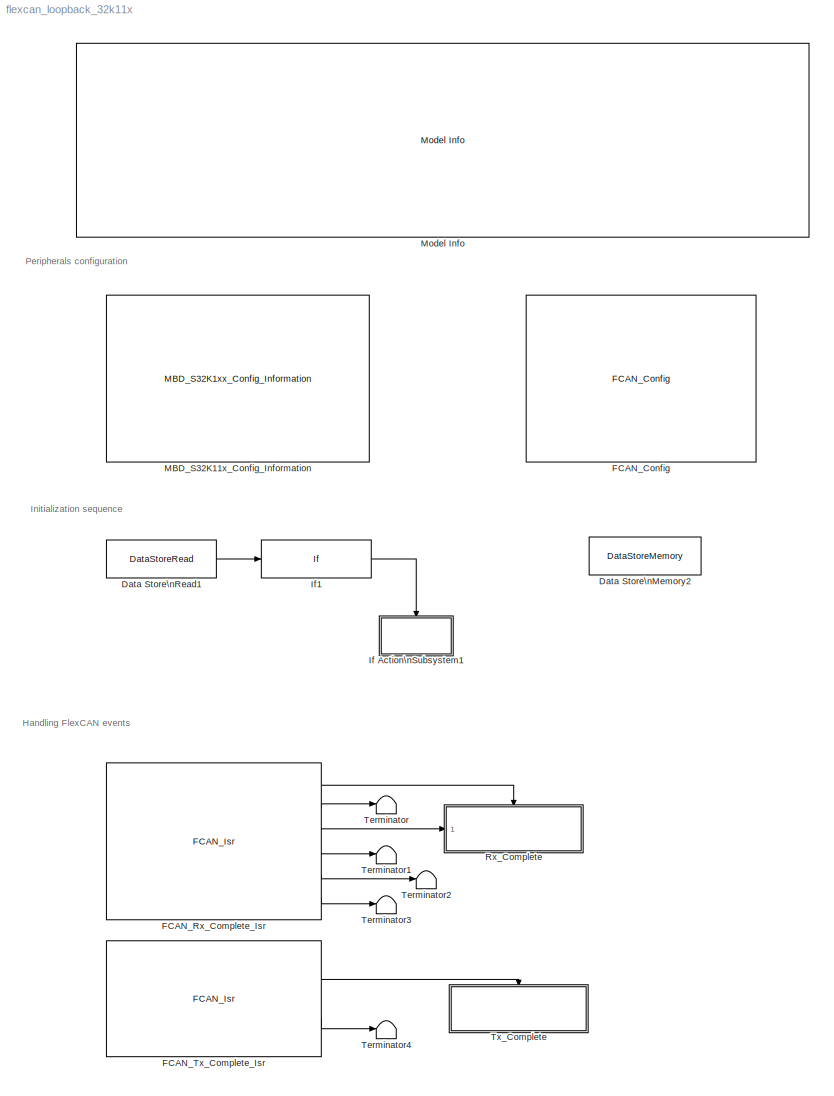
MODEL flexcan_loopback_32k11x
KIND model
CONFIG InitFcn = mbd_s32k_consistency_checks(bdroot(gcs));
BLOCK [DataStoreMemory] Data Store\nMemory2
  DataStoreName = Init_can_rec
  InitialValue = 1
  OutDataTypeStr = boolean
  ReadBeforeWriteMsg = warning
  SID = 509
  ShowAdditionalParam = off
  WriteAfterReadMsg = warning
  WriteAfterWriteMsg = warning
BLOCK [DataStoreRead] Data Store\nRead1
  DataStoreName = Init_can_rec
  Ports = [0, 1]
  SID = 511
BLOCK [Reference] FCAN_Config  REF=mbd_s32k1xx_ec_toolbox/Communication Blocks/CAN Blocks/FCAN_Config
  Ports = []
  Priority = 1
  SID = 498
  SourceBlock = mbd_s32k1xx_ec_toolbox/Communication Blocks/CAN Blocks/FCAN_Config
  SourceType = fcan_s32k_config
  bitrate = 500
  bitrate_adv_opts = off
  can_cbt_presdiv = 1
  can_cbt_propseg = 6
  can_cbt_pseg1 = 7
  can_cbt_pseg2 = 7
  can_cbt_rjw = 3
  can_clk_src = Oscillator clock
  can_fd_enable = off
  can_fifo_id_filter = {'0x0', '0x0', '0x0', '0x0', '0x0', '0x0', '0x0', '0x0'}
  can_fifo_id_filter_extended = off
  can_fifo_id_filter_remote = off
  can_fifo_id_format = A
  can_idfilter_extendedid = off
  can_idfilter_id1 = 0
  can_idfilter_id2 = 0
  can_idfilter_remoteframe = off
  can_idfilter_type = Match exact
  can_instance = 0
  can_match_timeout = 1
  can_max_num_mb = 16
  can_mode = Normal mode
  can_multiple_matches_en = off
  can_num_id_filters = 8
  can_num_matches = 1
  can_payload = 8
  can_payloadfilter_dlchigh = 0
  can_payloadfilter_dlclow = 0
  can_payloadfilter_enable = off
  can_payloadfilter_payload1_b0 = 0
  can_payloadfilter_payload1_b1 = 0
  can_payloadfilter_payload1_b2 = 0
  can_payloadfilter_payload1_b3 = 0
  can_payloadfilter_payload1_b4 = 0
  can_payloadfilter_payload1_b5 = 0
  can_payloadfilter_payload1_b6 = 0
  can_payloadfilter_payload1_b7 = 0
  can_payloadfilter_payload2_b0 = 0
  can_payloadfilter_payload2_b1 = 0
  can_payloadfilter_payload2_b2 = 0
  can_payloadfilter_payload2_b3 = 0
  can_payloadfilter_payload2_b4 = 0
  can_payloadfilter_payload2_b5 = 0
  can_payloadfilter_payload2_b6 = 0
  can_payloadfilter_payload2_b7 = 0
  can_payloadfilter_type = Match exact
  can_pn_enable = off
  can_presdiv = 1
  can_propseg = 7
  can_pseg1 = 6
  can_pseg2 = 3
  can_rjw = 3
  can_rx = PTE4: [CAN0_RX | CAN Rx channel]
  can_rxfifo_enable = off
  can_timeout_en = off
  can_tx = PTE5: [CAN0_TX | CAN Tx Channel]
  can_wakeup_match = off
  can_wakeup_timeout = off
  show_adv_opts = on
BLOCK [Reference] FCAN_Rx_Complete_Isr  REF=mbd_s32k1xx_ec_toolbox/Communication Blocks/CAN Blocks/FCAN_Isr
  Ports = [0, 6]
  SID = 86
  SourceBlock = mbd_s32k1xx_ec_toolbox/Communication Blocks/CAN Blocks/FCAN_Isr
  SourceType = fcan_s32k_isr
  can_event = Rx Complete
  can_instance = 0
BLOCK [Reference] FCAN_Tx_Complete_Isr  REF=mbd_s32k1xx_ec_toolbox/Communication Blocks/CAN Blocks/FCAN_Isr
  Ports = [0, 2]
  SID = 463
  SourceBlock = mbd_s32k1xx_ec_toolbox/Communication Blocks/CAN Blocks/FCAN_Isr
  SourceType = fcan_s32k_isr
  can_event = Tx Complete
  can_instance = 0
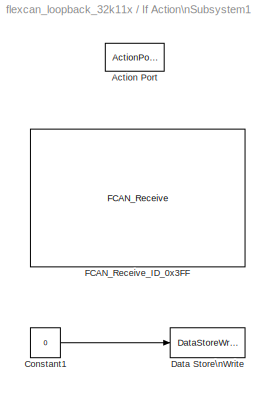
BLOCK [SubSystem] If Action\nSubsystem1
  Ports = [0, 0, 0, 0, 0, 0, 0, 1]
  RequestExecContextInheritance = off
  SID = 513
  TreatAsAtomicUnit = on
  Variant = off
BLOCK [ActionPort] If Action\nSubsystem1/Action Port
  SID = 514
BLOCK [Constant] If Action\nSubsystem1/Constant1
  OutDataTypeStr = boolean
  SID = 533
  Value = 0
BLOCK [DataStoreWrite] If Action\nSubsystem1/Data Store\nWrite
  DataStoreName = Init_can_rec
  Ports = [1]
  SID = 532
BLOCK [Reference] If Action\nSubsystem1/FCAN_Receive_ID_0x3FF  REF=mbd_s32k1xx_ec_toolbox/Communication Blocks/CAN Blocks/FCAN_Receive
  Ports = []
  SID = 516
  SourceBlock = mbd_s32k1xx_ec_toolbox/Communication Blocks/CAN Blocks/FCAN_Receive
  SourceType = fcan_s32k_receive
  can_extended_id = off
  can_fd_enable = off
  can_id = 3FF
  can_instance = 0
  can_is_remote = off
  can_mb_idx = 14
  can_mode = Non-blocking
  can_msg_mask = FFFFFFFF
  can_timeout_ms = 0
  can_use_rxfifo = off
  show_adv_opts = off
BLOCK [If] If1
  IfExpression = u1 == 1
  Ports = [1, 1]
  SID = 512
  ShowElse = off
BLOCK [Reference] MBD_S32K11x_Config_Information  REF=mbd_s32k1xx_ec_toolbox/MBD_S32K1xx_Config_Information
  ADC_PcrCheckEnDis = on
  AMMCLIB_PcrCheckEnDis = on
  CMP_PcrCheckEnDis = on
  CSEc_PcrCheckEnDis = on
  ConfigParams_PcrCheckEnDis = on
  FM_PcrCheckEnDis = on
  FTM_Dual_Edge_Inputs_PcrCheckEnDis = on
  FTM_Hall_Sensor_Inputs_PcrCheckEnDis = on
  FTM_Input_Edge_Inputs_PcrCheckEnDis = on
  FTM_PWM_PcrCheckEnDis = on
  FTM_Quadrature_Inputs_PcrCheckEnDis = on
  FlexCAN_PcrCheckEnDis = on
  FlexIO_PcrCheckEnDis = on
  GPIO_InputPcrCheckEnDis = on
  GPIO_OutputPcrCheckEnDis = on
  LIN_PcrCheckEnDis = on
  LPI2C_PcrCheckEnDis = on
  LPSPI_PcrCheckEnDis = on
  LPTMR_PcrCheckEnDis = on
  LPUART_PcrCheckEnDis = on
  ModelRef_PcrCheckEnDis = on
  PDB0_PcrCheckEnDis = on
  PIT_PcrCheckEnDis = on
  Ports = []
  Profile_PcrCheckEnDis = on
  RTC_PcrCheckEnDis = on
  SBC_PcrCheckEnDis = on
  SID = 497
  SourceBlock = mbd_s32k1xx_ec_toolbox/MBD_S32K1xx_Config_Information
  SourceType = MBDTBX_EC_S32K
  WDOG_PcrCheckEnDis = on
  config_params = []
  disp_str = Target : S32K144-64KB_SRAM\nPackage : 100-pin\nSystem clock : 80 MHz\nXTAL clock : External 8 MHz\nCompiler : IAR\nTarget Type : FLASH\nDownload Code after build : off\nStep Tick Interrupt Priority : 15
  ds_import_enable = on
  eDMA_PcrCheckEnDis = on
  gcc_target_assemble_opts = -mcpu=cortex-m0plus -mthumb -g
  gcc_target_compile_opts = -mcpu=cortex-m0plus -mthumb -O1 -g -gstrict-dwarf
  gcc_target_default_lcf = on
  gcc_target_link_opts = -mcpu=cortex-m0plus -mthumb
  gcc_target_user_lcf = S32K118_25_flash.ld
  ghs_target_assemble_opts = -thumb -preprocess_assembly_files -fsoft --gnu_asm
  ghs_target_compile_opts = -thumb -Ogeneral -Wundef -Wimplicit-int -Wshadow -Wtrigraphs --no_commons --gnu_asm -gdwarf-2 -G -c99
  ghs_target_default_lcf = on
  ghs_target_link_opts = -thumb
  ghs_target_user_lcf = S32K118_25_flash.ld
  iar_target_assemble_opts = --thumb
  iar_target_compile_opts = --thumb -Ol -e --debug --dlib_config normal
  iar_target_default_lcf = on
  iar_target_link_opts = --no_exceptions --vfe --inline
  iar_target_user_lcf = S32K118_25_flash.icf
  mbdt_ver = 0
  mcu_steptick_prio = 3
  mcu_steptick_timer = LPIT Channel 0
  mcu_system_clock_freq = 40
  mcu_target_name = S32K118
  mcu_target_package = 64-LQFP
  mcu_target_sram_size = 25KB
  mcu_xtal_freq = External 40
  pil_download_enable = off
  pil_download_rate = 57600
  pil_opensda_drive = Custom
  pil_opensda_drive_custom = D
  pil_uart_instance = 0
  pil_uart_rx = PTB0: [LPUART0_RX | Receive]
  pil_uart_tx = PTB1: [LPUART0_TX | Transmit]
  rbl_com_port = Custom
  rbl_com_port_custom = COM1
  rbl_download_enable = on
  rbl_download_interface = OpenSDA
  rbl_restart_request = off
  rbl_start_delay = 5000
  target_compiler = GCC
  target_memory = FLASH
BLOCK [Reference] Model Info  REF=simulink/Model-Wide\nUtilities/Model Info
  DisplayStringWithTags = Model Name: %<ModelName>\n\nDescription: %<Description>
  Frame = on
  HorizontalTextAlignment = Left
  LeftAlignmentValue = 0.02
  MaskDisplayString = Model Name: flexcan_loopback_32k11x\\n\\nDescription: This model tests the FlexCAN communication with \"flexcan_and_fm_over_can_s32k14x.mdl\" project.\\n\\nIf a numeric sequence with ID 0x3FF is received, red led will light until a mesaage will be \\nsent to S32K144 EVB with ID 3xFE.\\n\\nHW prerequisite:\\n- S32K118EVB-Q064\\n- Make sure that external power supply is provieded through J16.\\n\\nV...<+180ch>
  Ports = []
  SID = 74
  SourceBlock = simulink/Model-Wide\nUtilities/Model Info
  SourceProductBaseCode = SL
  SourceProductName = Simulink
  SourceType = CMBlock
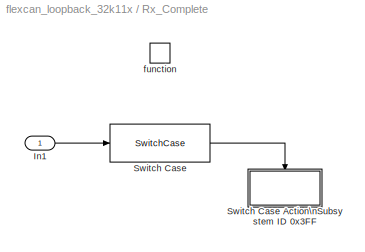
BLOCK [SubSystem] Rx_Complete
  Ports = [1, 0, 0, 1]
  RTWSystemCode = Nonreusable function
  RequestExecContextInheritance = off
  SID = 160
  TreatAsAtomicUnit = on
  Variant = off
BLOCK [Inport] Rx_Complete/In1
  IconDisplay = Port number
  SID = 175
BLOCK [SwitchCase] Rx_Complete/Switch Case
  CaseConditions = {hex2dec('3FF')}
  Ports = [1, 1]
  SID = 90
  ShowDefaultCase = off
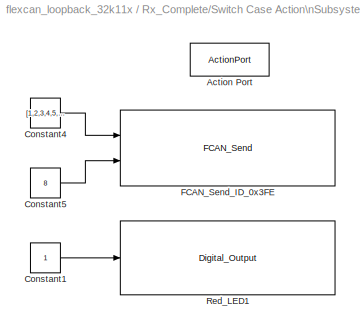
BLOCK [SubSystem] Rx_Complete/Switch Case Action\nSubsystem ID 0x3FF
  Ports = [0, 0, 0, 0, 0, 0, 0, 1]
  RequestExecContextInheritance = off
  SID = 198
  TreatAsAtomicUnit = on
  Variant = off
BLOCK [ActionPort] Rx_Complete/Switch Case Action\nSubsystem ID 0x3FF/Action Port
  SID = 199
BLOCK [Constant] Rx_Complete/Switch Case Action\nSubsystem ID 0x3FF/Constant1
  OutDataTypeStr = boolean
  SID = 504
BLOCK [Constant] Rx_Complete/Switch Case Action\nSubsystem ID 0x3FF/Constant4
  OutDataTypeStr = uint8
  SID = 553
  Value = [1,2,3,4,5,6,7,8]
BLOCK [Constant] Rx_Complete/Switch Case Action\nSubsystem ID 0x3FF/Constant5
  OutDataTypeStr = uint8
  SID = 554
  Value = 8
BLOCK [Reference] Rx_Complete/Switch Case Action\nSubsystem ID 0x3FF/FCAN_Send_ID_0x3FE  REF=mbd_s32k1xx_ec_toolbox/Communication Blocks/CAN Blocks/FCAN_Send
  Ports = [2]
  Priority = 2
  SID = 534
  SourceBlock = mbd_s32k1xx_ec_toolbox/Communication Blocks/CAN Blocks/FCAN_Send
  SourceType = fcan_s32k_send
  can_enable_brs = off
  can_extended_id = off
  can_fd_enable = off
  can_fd_padding = 0
  can_id = 3FE
  can_instance = 0
  can_is_remote = off
  can_mb_idx = 15
  can_mode = Non-blocking
  can_timeout_ms = 0
  show_adv_opts = off
BLOCK [Reference] Rx_Complete/Switch Case Action\nSubsystem ID 0x3FF/Red_LED1  REF=mbd_s32k1xx_ec_toolbox/GPIO Blocks/Digital_Output
  Ports = [1]
  SID = 505
  SourceBlock = mbd_s32k1xx_ec_toolbox/GPIO Blocks/Digital_Output
  SourceType = gpio_s32k_output
  drive_strength = Low
  gpio_pin = PTD16: [PTD16 | Port D I/O]
  init_val = Low
BLOCK [TriggerPort] Rx_Complete/function
  Ports = []
  SID = 161
  StatesWhenEnabling = held
  TriggerType = function-call
  VariantControl = Variant
BLOCK [Terminator] Terminator
  SID = 475
BLOCK [Terminator] Terminator1
  SID = 474
BLOCK [Terminator] Terminator2
  SID = 473
BLOCK [Terminator] Terminator3
  SID = 480
BLOCK [Terminator] Terminator4
  SID = 476
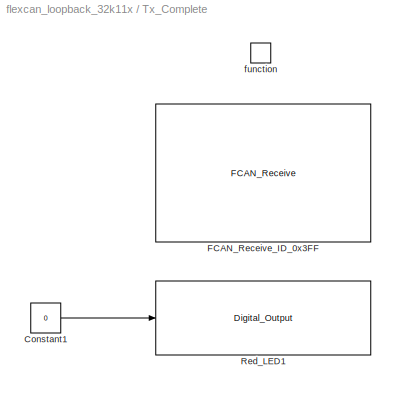
BLOCK [SubSystem] Tx_Complete
  Ports = [0, 0, 0, 1]
  RTWSystemCode = Nonreusable function
  RequestExecContextInheritance = off
  SID = 110
  TreatAsAtomicUnit = on
  Variant = off
BLOCK [Constant] Tx_Complete/Constant1
  OutDataTypeStr = boolean
  SID = 549
  Value = 0
BLOCK [Reference] Tx_Complete/FCAN_Receive_ID_0x3FF  REF=mbd_s32k1xx_ec_toolbox/Communication Blocks/CAN Blocks/FCAN_Receive
  Ports = []
  SID = 548
  SourceBlock = mbd_s32k1xx_ec_toolbox/Communication Blocks/CAN Blocks/FCAN_Receive
  SourceType = fcan_s32k_receive
  can_extended_id = off
  can_fd_enable = off
  can_id = 3FF
  can_instance = 0
  can_is_remote = off
  can_mb_idx = 14
  can_mode = Non-blocking
  can_msg_mask = FFFFFFFF
  can_timeout_ms = 0
  can_use_rxfifo = off
  show_adv_opts = off
BLOCK [Reference] Tx_Complete/Red_LED1  REF=mbd_s32k1xx_ec_toolbox/GPIO Blocks/Digital_Output
  Ports = [1]
  SID = 550
  SourceBlock = mbd_s32k1xx_ec_toolbox/GPIO Blocks/Digital_Output
  SourceType = gpio_s32k_output
  drive_strength = Low
  gpio_pin = PTD16: [PTD16 | Port D I/O]
  init_val = Low
BLOCK [TriggerPort] Tx_Complete/function
  Ports = []
  SID = 112
  StatesWhenEnabling = held
  TriggerType = function-call
  VariantControl = Variant
ANNOTATION (root): Handling FlexCAN events
ANNOTATION (root): Initialization sequence
ANNOTATION (root): Peripherals configuration
LINE Data Store\nRead1:1 -> If1:1
LINE FCAN_Rx_Complete_Isr:1 -> Rx_Complete:trigger
LINE FCAN_Rx_Complete_Isr:2 -> Terminator:1
LINE FCAN_Rx_Complete_Isr:3 -> Rx_Complete:1
LINE FCAN_Rx_Complete_Isr:4 -> Terminator1:1
LINE FCAN_Rx_Complete_Isr:5 -> Terminator2:1
LINE FCAN_Rx_Complete_Isr:6 -> Terminator3:1
LINE FCAN_Tx_Complete_Isr:1 -> Tx_Complete:trigger
LINE FCAN_Tx_Complete_Isr:2 -> Terminator4:1
LINE If Action\nSubsystem1/Constant1:1 -> If Action\nSubsystem1/Data Store\nWrite:1
LINE If1:1 -> If Action\nSubsystem1:ifaction
LINE Rx_Complete/In1:1 -> Rx_Complete/Switch Case:1
LINE Rx_Complete/Switch Case Action\nSubsystem ID 0x3FF/Constant1:1 -> Rx_Complete/Switch Case Action\nSubsystem ID 0x3FF/Red_LED1:1
LINE Rx_Complete/Switch Case Action\nSubsystem ID 0x3FF/Constant4:1 -> Rx_Complete/Switch Case Action\nSubsystem ID 0x3FF/FCAN_Send_ID_0x3FE:1
LINE Rx_Complete/Switch Case Action\nSubsystem ID 0x3FF/Constant5:1 -> Rx_Complete/Switch Case Action\nSubsystem ID 0x3FF/FCAN_Send_ID_0x3FE:2
LINE Rx_Complete/Switch Case:1 -> Rx_Complete/Switch Case Action\nSubsystem ID 0x3FF:ifaction
LINE Tx_Complete/Constant1:1 -> Tx_Complete/Red_LED1:1
